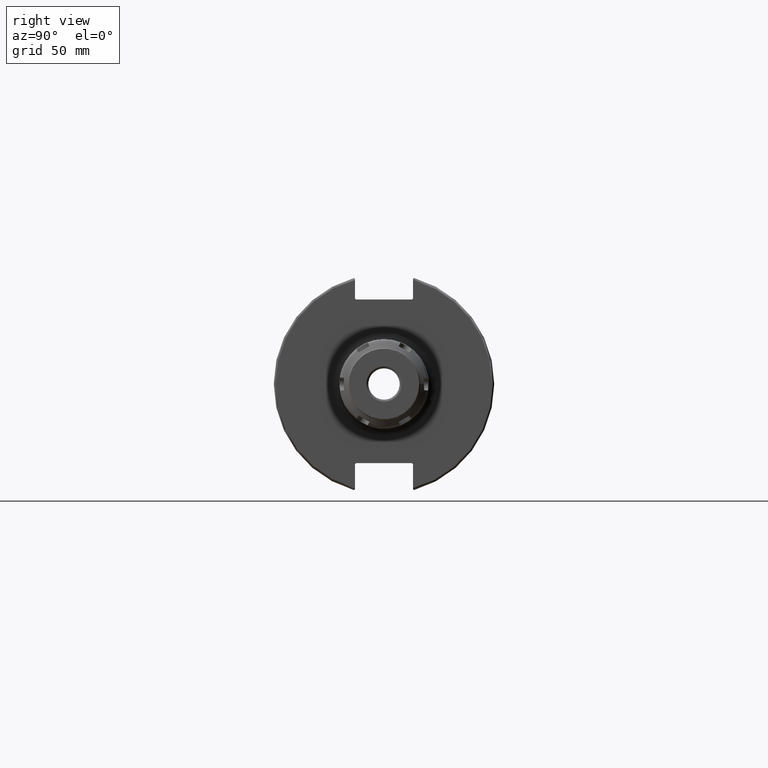
[diagram: clean part render]
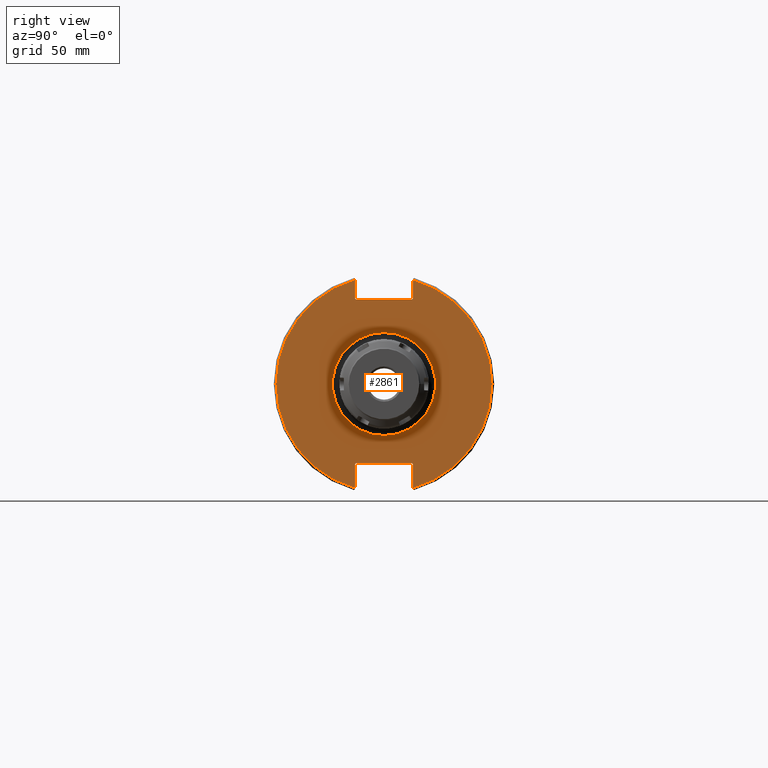
[diagram: same view with one face highlighted and labeled with its STEP entity id]
A machine part, right view. The second image highlights one B-rep face of the part: STEP entity #2861.
In plain terms, the highlighted planar face has unit normal (1, 0, 0).
Its self-contained STEP definition (entity closure, byte-faithful):
#178=LINE('',#4361,#374);
#179=LINE('',#4363,#375);
#180=LINE('',#4365,#376);
#181=LINE('',#4367,#377);
#182=LINE('',#4369,#378);
#183=LINE('',#4373,#379);
#184=LINE('',#4375,#380);
#185=LINE('',#4377,#381);
#186=LINE('',#4379,#382);
#187=LINE('',#4380,#383);
#374=VECTOR('',#3504,10.);
#375=VECTOR('',#3505,10.);
#376=VECTOR('',#3506,10.);
#377=VECTOR('',#3507,10.);
#378=VECTOR('',#3508,10.);
#379=VECTOR('',#3511,10.);
#380=VECTOR('',#3512,10.);
#381=VECTOR('',#3513,10.);
#382=VECTOR('',#3514,10.);
#383=VECTOR('',#3515,10.);
#607=FACE_BOUND('',#865,.T.);
#628=PLANE('',#3118);
#697=FACE_OUTER_BOUND('',#864,.T.);
#864=EDGE_LOOP('',(#1992,#1993,#1994,#1995,#1996,#1997,#1998,#1999,#2000,
#2001,#2002,#2003));
#865=EDGE_LOOP('',(#2004));
#1063=CIRCLE('',#3117,23.);
#1064=CIRCLE('',#3119,48.2125);
#1065=CIRCLE('',#3120,48.2125);
#1212=VERTEX_POINT('',#4353);
#1213=VERTEX_POINT('',#4357);
#1214=VERTEX_POINT('',#4358);
#1215=VERTEX_POINT('',#4360);
#1216=VERTEX_POINT('',#4362);
#1217=VERTEX_POINT('',#4364);
#1218=VERTEX_POINT('',#4366);
#1219=VERTEX_POINT('',#4368);
#1220=VERTEX_POINT('',#4370);
#1221=VERTEX_POINT('',#4372);
#1222=VERTEX_POINT('',#4374);
#1223=VERTEX_POINT('',#4376);
#1224=VERTEX_POINT('',#4378);
#1517=EDGE_CURVE('',#1212,#1212,#1063,.T.);
#1518=EDGE_CURVE('',#1213,#1214,#1064,.T.);
#1519=EDGE_CURVE('',#1213,#1215,#178,.T.);
#1520=EDGE_CURVE('',#1216,#1215,#179,.T.);
#1521=EDGE_CURVE('',#1216,#1217,#180,.T.);
#1522=EDGE_CURVE('',#1218,#1217,#181,.T.);
#1523=EDGE_CURVE('',#1218,#1219,#182,.T.);
#1524=EDGE_CURVE('',#1220,#1219,#1065,.T.);
#1525=EDGE_CURVE('',#1220,#1221,#183,.T.);
#1526=EDGE_CURVE('',#1222,#1221,#184,.T.);
#1527=EDGE_CURVE('',#1222,#1223,#185,.T.);
#1528=EDGE_CURVE('',#1224,#1223,#186,.T.);
#1529=EDGE_CURVE('',#1224,#1214,#187,.T.);
#1992=ORIENTED_EDGE('',*,*,#1518,.F.);
#1993=ORIENTED_EDGE('',*,*,#1519,.T.);
#1994=ORIENTED_EDGE('',*,*,#1520,.F.);
#1995=ORIENTED_EDGE('',*,*,#1521,.T.);
#1996=ORIENTED_EDGE('',*,*,#1522,.F.);
#1997=ORIENTED_EDGE('',*,*,#1523,.T.);
#1998=ORIENTED_EDGE('',*,*,#1524,.F.);
#1999=ORIENTED_EDGE('',*,*,#1525,.T.);
#2000=ORIENTED_EDGE('',*,*,#1526,.F.);
#2001=ORIENTED_EDGE('',*,*,#1527,.T.);
#2002=ORIENTED_EDGE('',*,*,#1528,.F.);
#2003=ORIENTED_EDGE('',*,*,#1529,.T.);
#2004=ORIENTED_EDGE('',*,*,#1517,.F.);
#2861=ADVANCED_FACE('',(#697,#607),#628,.T.);
#3117=AXIS2_PLACEMENT_3D('',#4355,#3498,#3499);
#3118=AXIS2_PLACEMENT_3D('',#4356,#3500,#3501);
#3119=AXIS2_PLACEMENT_3D('',#4359,#3502,#3503);
#3120=AXIS2_PLACEMENT_3D('',#4371,#3509,#3510);
#3498=DIRECTION('center_axis',(1.,0.,0.));
#3499=DIRECTION('ref_axis',(0.,-1.,-1.22464679914735E-16));
#3500=DIRECTION('center_axis',(1.,0.,0.));
#3501=DIRECTION('ref_axis',(0.,0.,-1.));
#3502=DIRECTION('center_axis',(-1.,0.,0.));
#3503=DIRECTION('ref_axis',(0.,1.,-6.12323399573677E-17));
#3504=DIRECTION('',(0.,0.,-1.));
#3505=DIRECTION('',(0.,0.707106781186549,0.707106781186546));
#3506=DIRECTION('',(0.,-1.,0.));
#3507=DIRECTION('',(0.,0.707106781186549,-0.707106781186546));
#3508=DIRECTION('',(0.,0.,1.));
#3509=DIRECTION('center_axis',(-1.,0.,0.));
#3510=DIRECTION('ref_axis',(0.,-1.,1.60812264967664E-16));
#3511=DIRECTION('',(0.,0.,1.));
#3512=DIRECTION('',(0.,-0.707106781186549,-0.707106781186546));
#3513=DIRECTION('',(0.,1.,0.));
#3514=DIRECTION('',(0.,-0.707106781186548,0.707106781186548));
#3515=DIRECTION('',(0.,0.,-1.));
#4353=CARTESIAN_POINT('',(19.05,-2.81668763803891E-15,-23.));
#4355=CARTESIAN_POINT('Origin',(19.05,0.,0.));
#4356=CARTESIAN_POINT('Origin',(19.05,0.,0.));
#4357=CARTESIAN_POINT('',(19.05,12.95,46.4407434937254));
#4358=CARTESIAN_POINT('',(19.05,12.95,-46.4407434937254));
#4359=CARTESIAN_POINT('Origin',(19.05,0.,0.));
#4360=CARTESIAN_POINT('',(19.05,12.95,38.219));
#4361=CARTESIAN_POINT('',(19.05,12.95,18.8595));
#4362=CARTESIAN_POINT('',(19.05,12.45,37.719));
#4363=CARTESIAN_POINT('',(19.05,0.0327499999999836,25.30175));
#4364=CARTESIAN_POINT('',(19.05,-12.45,37.719));
#4365=CARTESIAN_POINT('',(19.05,0.,37.719));
#4366=CARTESIAN_POINT('',(19.05,-12.95,38.219));
#4367=CARTESIAN_POINT('',(19.05,-0.0327499999999817,25.30175));
#4368=CARTESIAN_POINT('',(19.05,-12.95,46.4407434937254));
#4369=CARTESIAN_POINT('',(19.05,-12.95,18.8595));
#4370=CARTESIAN_POINT('',(19.05,-12.95,-46.4407434937254));
#4371=CARTESIAN_POINT('Origin',(19.05,0.,0.));
#4372=CARTESIAN_POINT('',(19.05,-12.95,-35.806));
#4373=CARTESIAN_POINT('',(19.05,-12.95,-17.653));
#4374=CARTESIAN_POINT('',(19.05,-12.45,-35.306));
#4375=CARTESIAN_POINT('',(19.05,-0.635999999999989,-23.492));
#4376=CARTESIAN_POINT('',(19.05,12.45,-35.306));
#4377=CARTESIAN_POINT('',(19.05,-3.88578058618805E-15,-35.306));
#4378=CARTESIAN_POINT('',(19.05,12.95,-35.806));
#4379=CARTESIAN_POINT('',(19.05,0.635999999999995,-23.492));
#4380=CARTESIAN_POINT('',(19.05,12.95,-17.653));